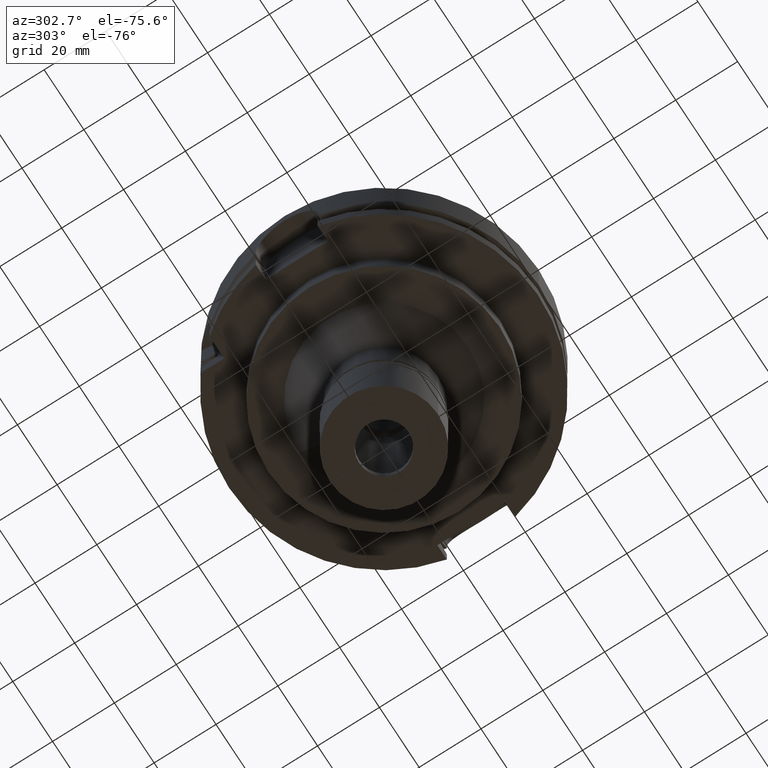
[diagram: clean part render]
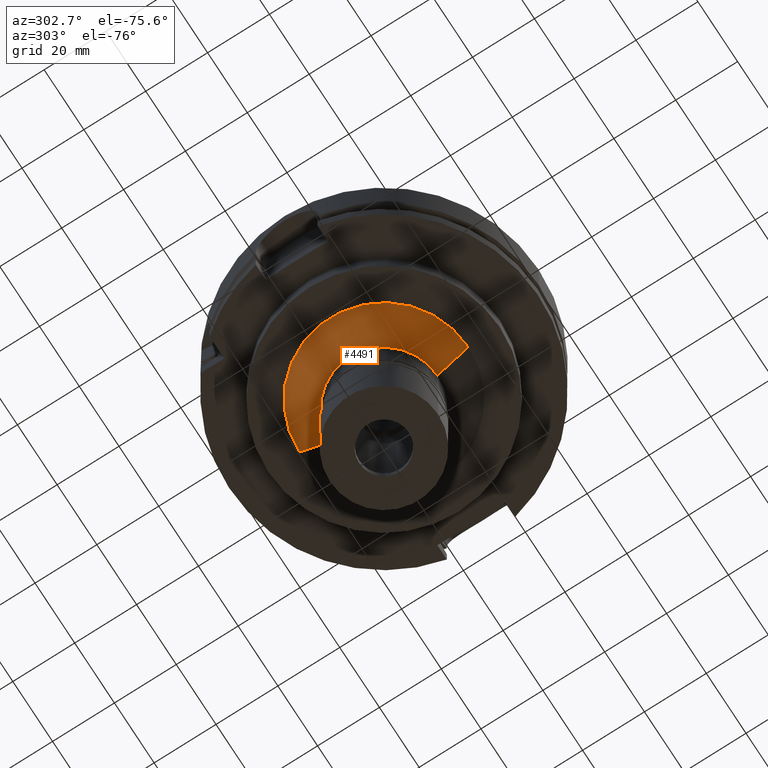
[diagram: same view with one face highlighted and labeled with its STEP entity id]
A machine part, auxiliary view. The second image highlights one B-rep face of the part: STEP entity #4491.
In plain terms, the highlighted conical surface has half-angle 45 deg.
Its self-contained STEP definition (entity closure, byte-faithful):
#25 = DIRECTION ( 'NONE',  ( 0.0000000000000000000, 1.000000000000000000, 0.0000000000000000000 ) ) ;
#131 = CARTESIAN_POINT ( 'NONE',  ( 0.0000000000000000000, -17.25000000000000000, -47.00000000000000000 ) ) ;
#242 = AXIS2_PLACEMENT_3D ( 'NONE', #2222, #4790, #4313 ) ;
#441 = ORIENTED_EDGE ( 'NONE', *, *, #1923, .T. ) ;
#454 = CARTESIAN_POINT ( 'NONE',  ( 0.0000000000000000000, -27.25000000000000000, -37.00000000000000000 ) ) ;
#470 = FACE_OUTER_BOUND ( 'NONE', #3128, .T. ) ;
#481 = DIRECTION ( 'NONE',  ( 0.0000000000000000000, -1.000000000000000000, 0.0000000000000000000 ) ) ;
#734 = VERTEX_POINT ( 'NONE', #3591 ) ;
#1619 = LINE ( 'NONE', #454, #2011 ) ;
#1923 = EDGE_CURVE ( 'NONE', #734, #5271, #2172, .T. ) ;
#2011 = VECTOR ( 'NONE', #2980, 1000.000000000000114 ) ;
#2110 = VERTEX_POINT ( 'NONE', #2724 ) ;
#2172 = LINE ( 'NONE', #4772, #3960 ) ;
#2173 = CARTESIAN_POINT ( 'NONE',  ( 0.0000000000000000000, 0.0000000000000000000, -42.00000000000000000 ) ) ;
#2222 = CARTESIAN_POINT ( 'NONE',  ( 0.0000000000000000000, 0.0000000000000000000, -37.00000000000000000 ) ) ;
#2424 = EDGE_CURVE ( 'NONE', #2110, #734, #5076, .T. ) ;
#2724 = CARTESIAN_POINT ( 'NONE',  ( 0.0000000000000000000, -27.25000000000000000, -37.00000000000000000 ) ) ;
#2980 = DIRECTION ( 'NONE',  ( 0.0000000000000000000, 0.7071067811865474617, -0.7071067811865474617 ) ) ;
#3128 = EDGE_LOOP ( 'NONE', ( #3256, #3291, #4955, #441 ) ) ;
#3204 = AXIS2_PLACEMENT_3D ( 'NONE', #4334, #3909, #481 ) ;
#3256 = ORIENTED_EDGE ( 'NONE', *, *, #3571, .F. ) ;
#3291 = ORIENTED_EDGE ( 'NONE', *, *, #3958, .F. ) ;
#3435 = CARTESIAN_POINT ( 'NONE',  ( 0.0000000000000000000, 17.25000000000000000, -47.00000000000000000 ) ) ;
#3473 = DIRECTION ( 'NONE',  ( 0.0000000000000000000, -0.7071067811865474617, -0.7071067811865474617 ) ) ;
#3571 = EDGE_CURVE ( 'NONE', #3742, #5271, #4293, .T. ) ;
#3591 = CARTESIAN_POINT ( 'NONE',  ( 0.0000000000000000000, 27.25000000000000000, -37.00000000000000000 ) ) ;
#3742 = VERTEX_POINT ( 'NONE', #131 ) ;
#3894 = DIRECTION ( 'NONE',  ( 0.0000000000000000000, 0.0000000000000000000, 1.000000000000000000 ) ) ;
#3909 = DIRECTION ( 'NONE',  ( 0.0000000000000000000, 0.0000000000000000000, -1.000000000000000000 ) ) ;
#3958 = EDGE_CURVE ( 'NONE', #2110, #3742, #1619, .T. ) ;
#3960 = VECTOR ( 'NONE', #3473, 1000.000000000000114 ) ;
#4293 = CIRCLE ( 'NONE', #3204, 17.25000000000000000 ) ;
#4313 = DIRECTION ( 'NONE',  ( 0.0000000000000000000, -1.000000000000000000, 0.0000000000000000000 ) ) ;
#4334 = CARTESIAN_POINT ( 'NONE',  ( 0.0000000000000000000, 0.0000000000000000000, -47.00000000000000000 ) ) ;
#4491 = ADVANCED_FACE ( 'NONE', ( #470 ), #4537, .T. ) ;
#4537 = CONICAL_SURFACE ( 'NONE', #5252, 22.25000000000000000, 0.7853981633972997312 ) ;
#4772 = CARTESIAN_POINT ( 'NONE',  ( 0.0000000000000000000, 27.25000000000000000, -37.00000000000000000 ) ) ;
#4790 = DIRECTION ( 'NONE',  ( 0.0000000000000000000, 0.0000000000000000000, -1.000000000000000000 ) ) ;
#4955 = ORIENTED_EDGE ( 'NONE', *, *, #2424, .T. ) ;
#5076 = CIRCLE ( 'NONE', #242, 27.25000000000000000 ) ;
#5252 = AXIS2_PLACEMENT_3D ( 'NONE', #2173, #3894, #25 ) ;
#5271 = VERTEX_POINT ( 'NONE', #3435 ) ;